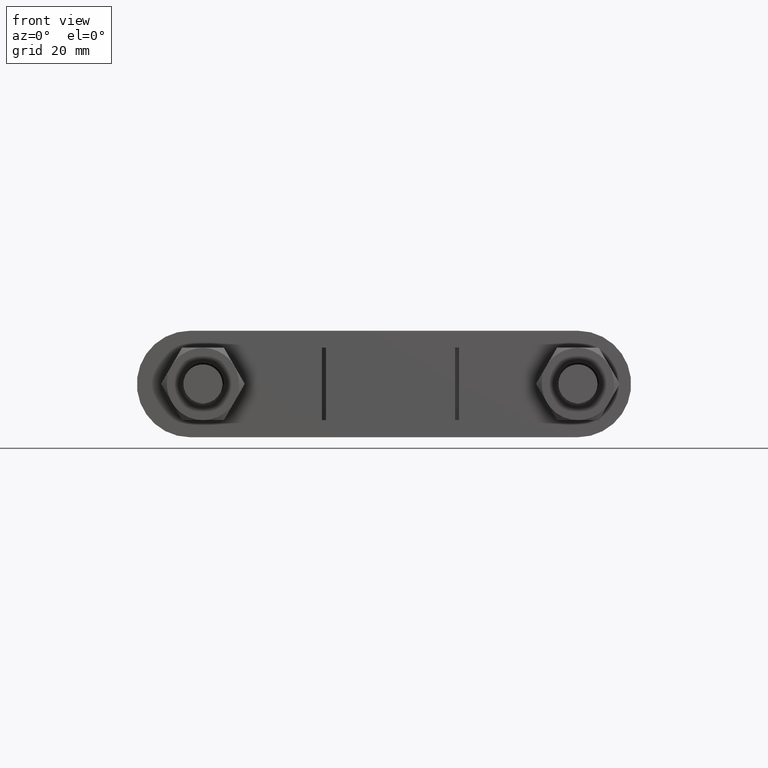
[diagram: clean part render]
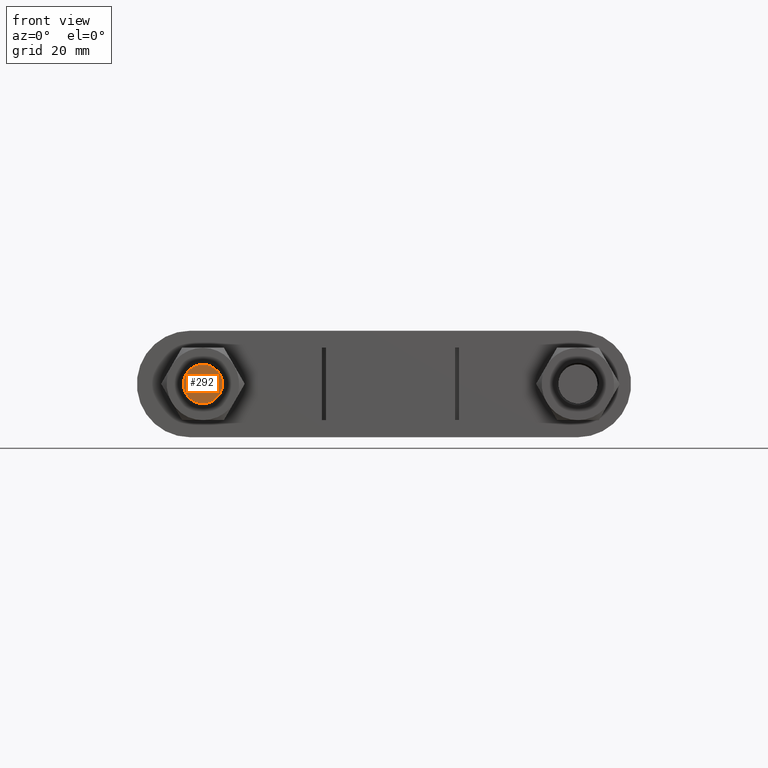
[diagram: same view with one face highlighted and labeled with its STEP entity id]
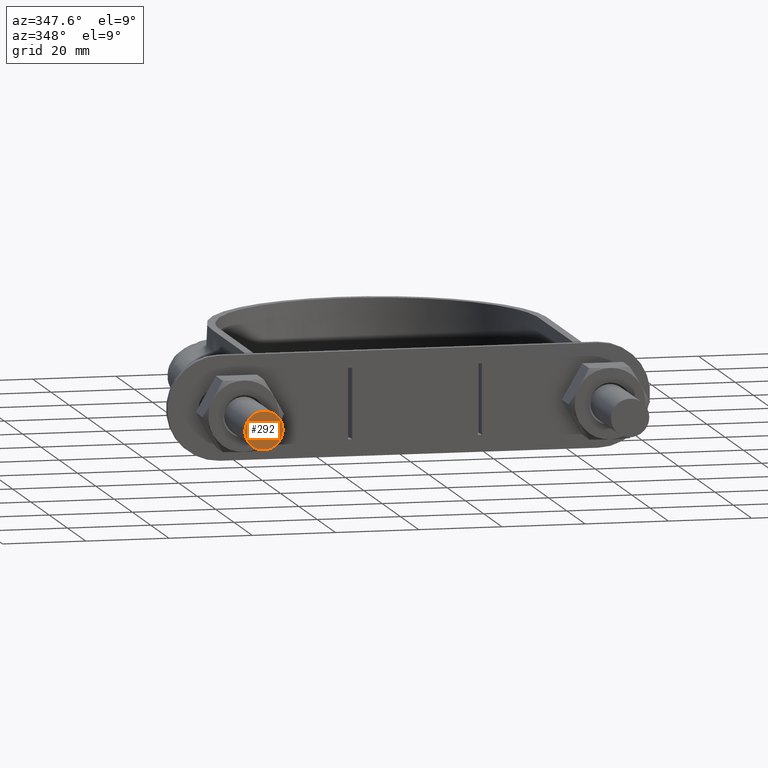
[diagram: same view with one face highlighted and labeled with its STEP entity id]
A machine part, front view. The second image highlights one B-rep face of the part: STEP entity #292.
A second angle (auxiliary view) of the same face is appended — the face is thin or edge-on in the first view.
In plain terms, the highlighted planar face has unit normal (-0, -1, -0).
Its self-contained STEP definition (entity closure, byte-faithful):
#292 = ADVANCED_FACE( '', ( #434 ), #435, .T. );
#434 = FACE_OUTER_BOUND( '', #1358, .T. );
#435 = PLANE( '', #1359 );
#1358 = EDGE_LOOP( '', ( #1719 ) );
#1359 = AXIS2_PLACEMENT_3D( '', #1720, #1721, #1722 );
#1719 = ORIENTED_EDGE( '', *, *, #2397, .T. );
#1720 = CARTESIAN_POINT( '', ( -44.0000000000000, 1.07765359136369E-014, 6.12303176911192E-017 ) );
#1721 = DIRECTION( '', ( -2.44921270764476E-016, -1.00000000000000, -6.12303176911189E-017 ) );
#1722 = DIRECTION( '', ( -1.00000000000000, 2.44921270764476E-016, 3.01888774004914E-048 ) );
#2397 = EDGE_CURVE( '', #2655, #2655, #2656, .T. );
#2655 = VERTEX_POINT( '', #3280 );
#2656 = CIRCLE( '', #3281, 4.60000000000000 );
#3280 = CARTESIAN_POINT( '', ( -39.4000000000000, 9.64989806812033E-015, 6.12303176911191E-017 ) );
#3281 = AXIS2_PLACEMENT_3D( '', #3880, #3881, #3882 );
#3880 = CARTESIAN_POINT( '', ( -44.0000000000000, 1.07765359136369E-014, 6.12303176911192E-017 ) );
#3881 = DIRECTION( '', ( -2.44921270764476E-016, -1.00000000000000, -6.12303176911189E-017 ) );
#3882 = DIRECTION( '', ( 1.00000000000000, -2.44921270764476E-016, -1.01150562509412E-032 ) );